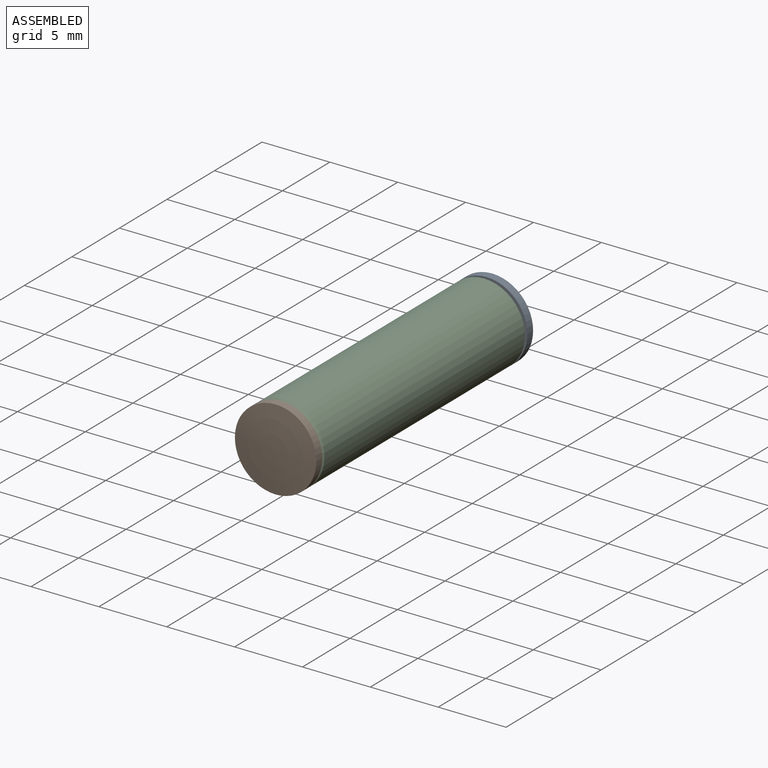
[diagram: assembled view]
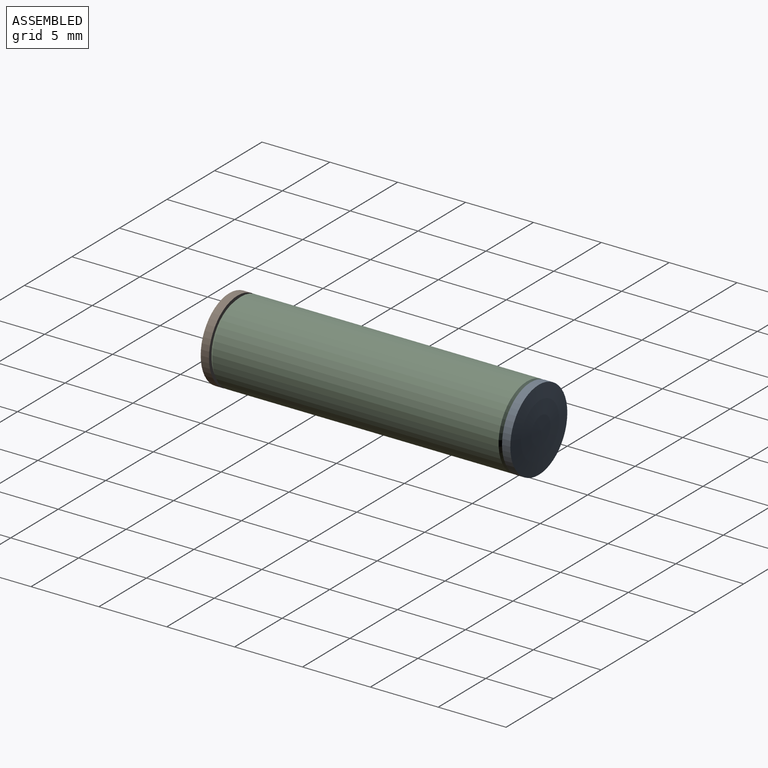
[diagram: assembled view, second angle]
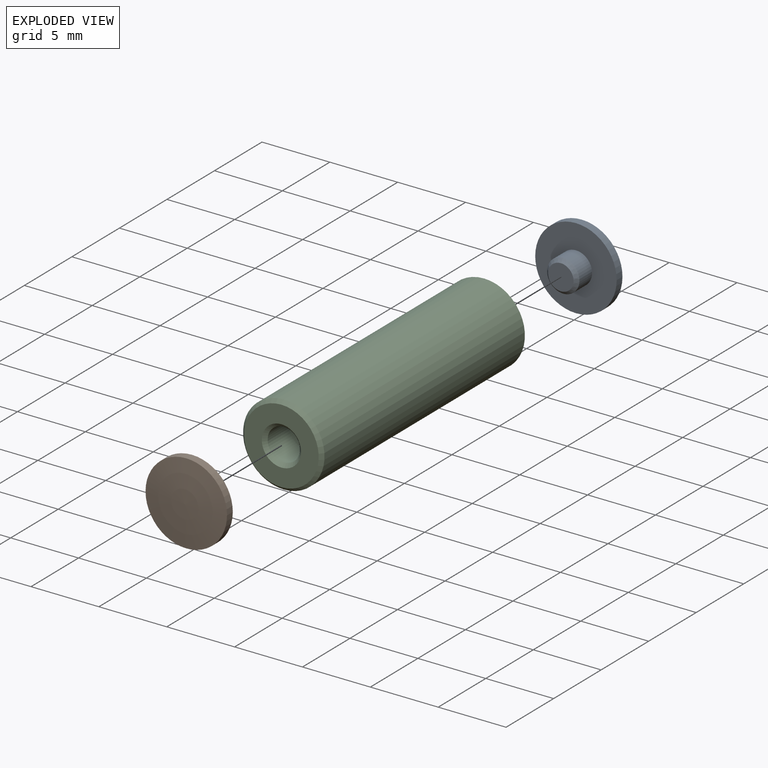
[diagram: exploded view]
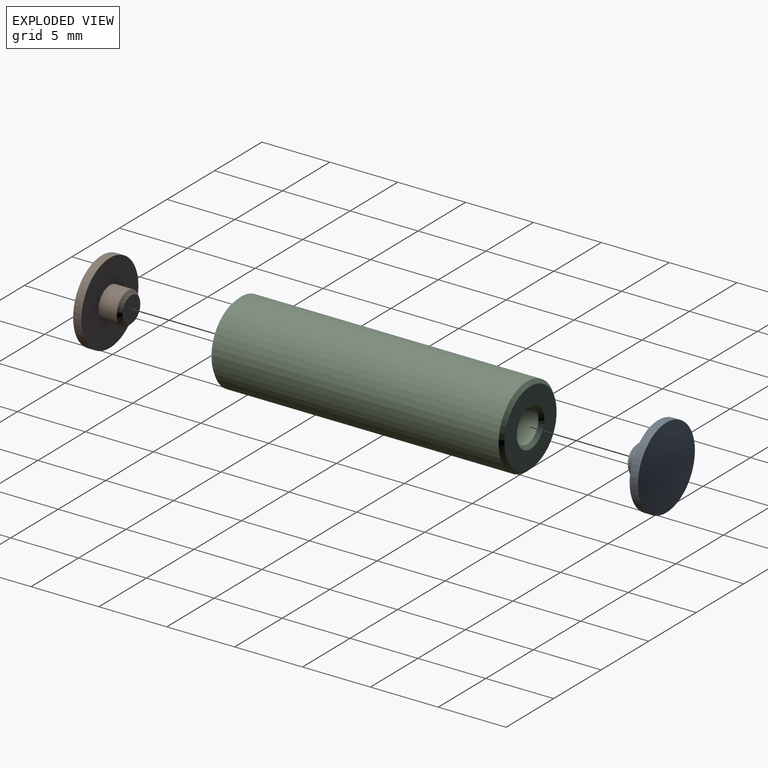
[diagram: exploded view, second angle]
ASSEMBLY  parts=3 mates=2
PART A: 6 faces, bbox 6x2.4x6 mm
  f0: cylinder r=3mm len=6mm, axis (0,1,0), area 11.5mm2, adj f1,f4
  f1: sphere r=25.4mm, area 28.4mm2, adj f0
  f2: plane 1.87x1.87mm, normal (0,1,0), area 2.8mm2, adj f5
  f3: cylinder r=1.19mm len=2.38mm, axis (0,1,0), area 10mm2, adj f4,f5
  f4: plane 6x6mm, normal (0,1,0), area 23.8mm2, adj f0,f3
  f5: cone r=0.94mm half-angle=45deg, axis (0,-1,0), area 2.4mm2, adj f2,f3
PART B: same geometry as A
PART C: 11 faces, bbox 6x21.6x6 mm
  f0: plane 5.49x5.49mm, normal (0,-1,0), area 17.1mm2, adj f9,f10
  f1: cylinder r=1.19mm len=2.38mm, axis (0,-1,0), area 17.1mm2, adj f2,f10
  f2: cone r=1.19mm half-angle=59deg, axis (0,-1,0), area 5.2mm2, adj f1
  f3: cone r=1.19mm half-angle=59deg, axis (0,1,0), area 5.2mm2, adj f4
  f4: cylinder r=1.19mm len=2.38mm, axis (0,-1,0), area 17.1mm2, adj f3,f7
  f5: plane 5.49x5.49mm, normal (0,1,0), area 17.1mm2, adj f7,f8
  f6: cylinder r=3mm len=21.08mm, axis (0,-1,0), area 397.4mm2, adj f8,f9
  f7: cone r=1.44mm half-angle=45deg, axis (0,1,0), area 3mm2, adj f4,f5
  f8: cone r=3mm half-angle=45deg, axis (0,-1,0), area 6.5mm2, adj f5,f6
  f9: cone r=2.75mm half-angle=45deg, axis (0,1,0), area 6.5mm2, adj f0,f6
  f10: cone r=1.19mm half-angle=45deg, axis (0,-1,0), area 3mm2, adj f0,f1
PLACE A rot(axis=(0,0,1),180deg) t=(0,11.58,0)mm
PLACE B t=(0,-11.58,0)mm
PLACE C at identity fixed
MATE fastened C.f1 <-> A.f0  axis (0,1,0) through (0,10.8,0)mm
MATE fastened C.f1 <-> B.f0  axis (0,-1,0) through (0,-10.8,0)mm
